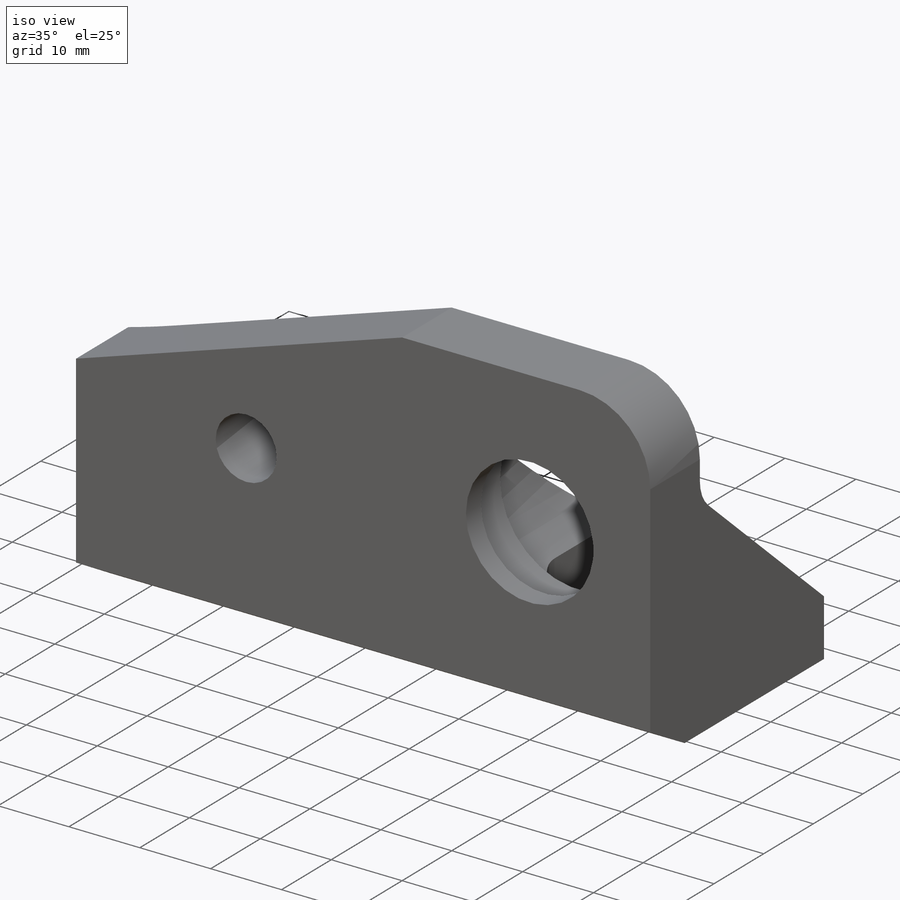
[diagram: iso view]
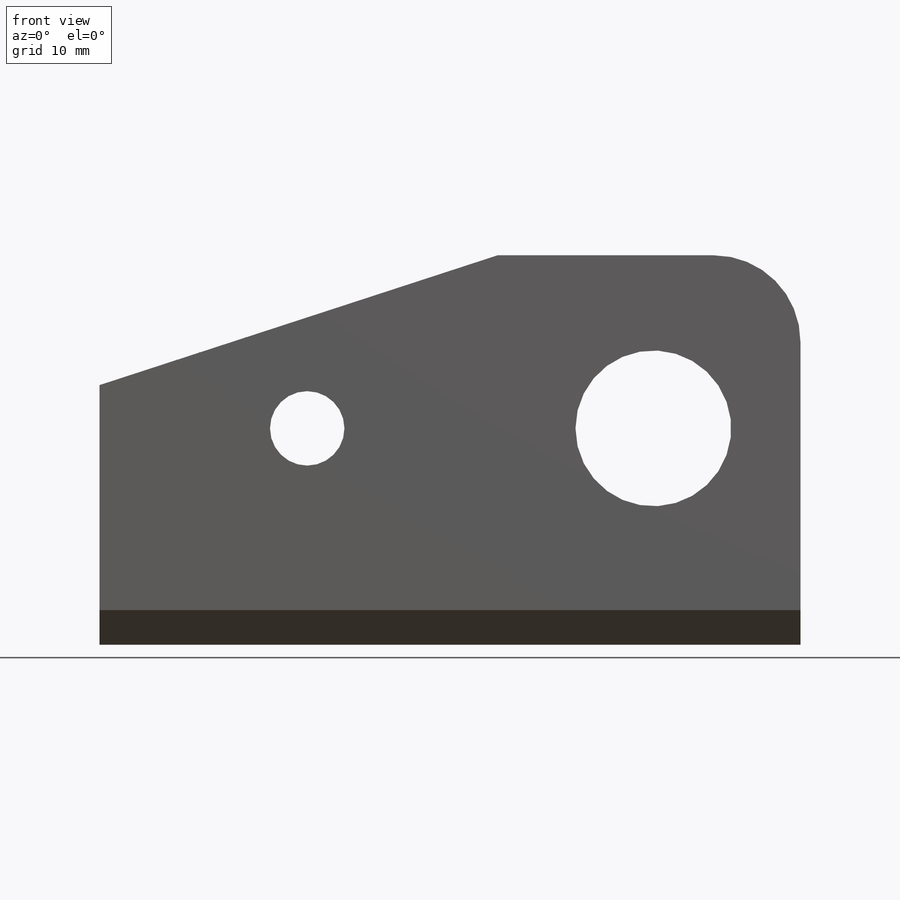
[diagram: front view]
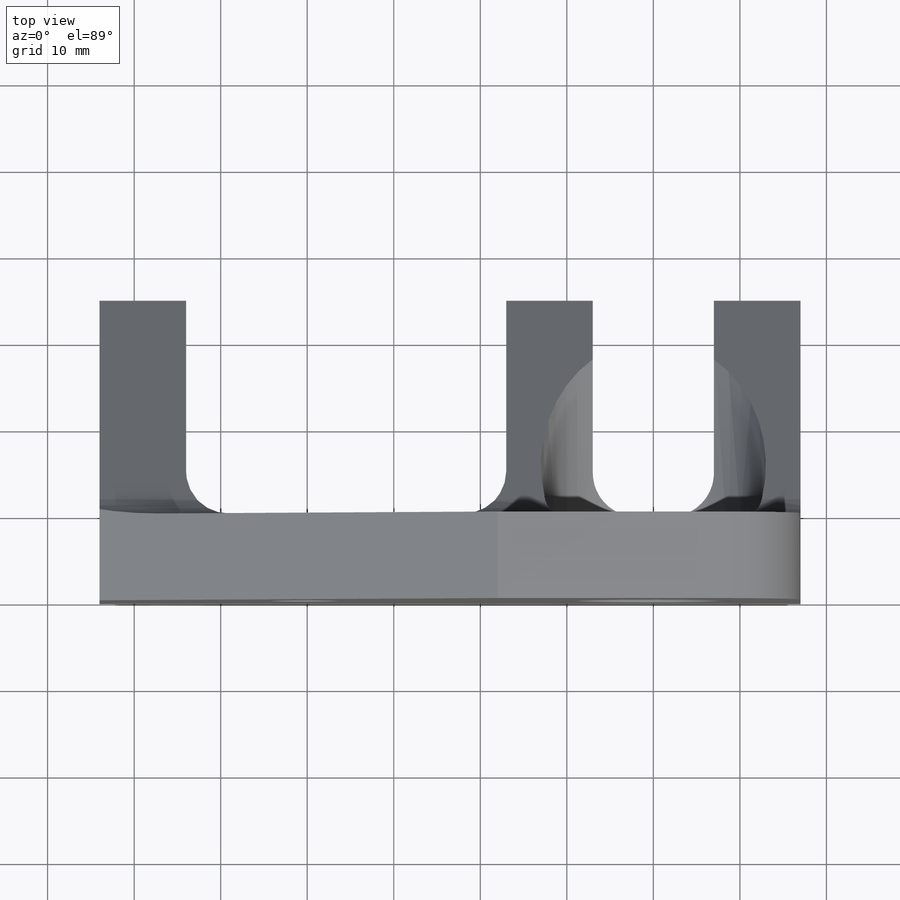
[diagram: top view]
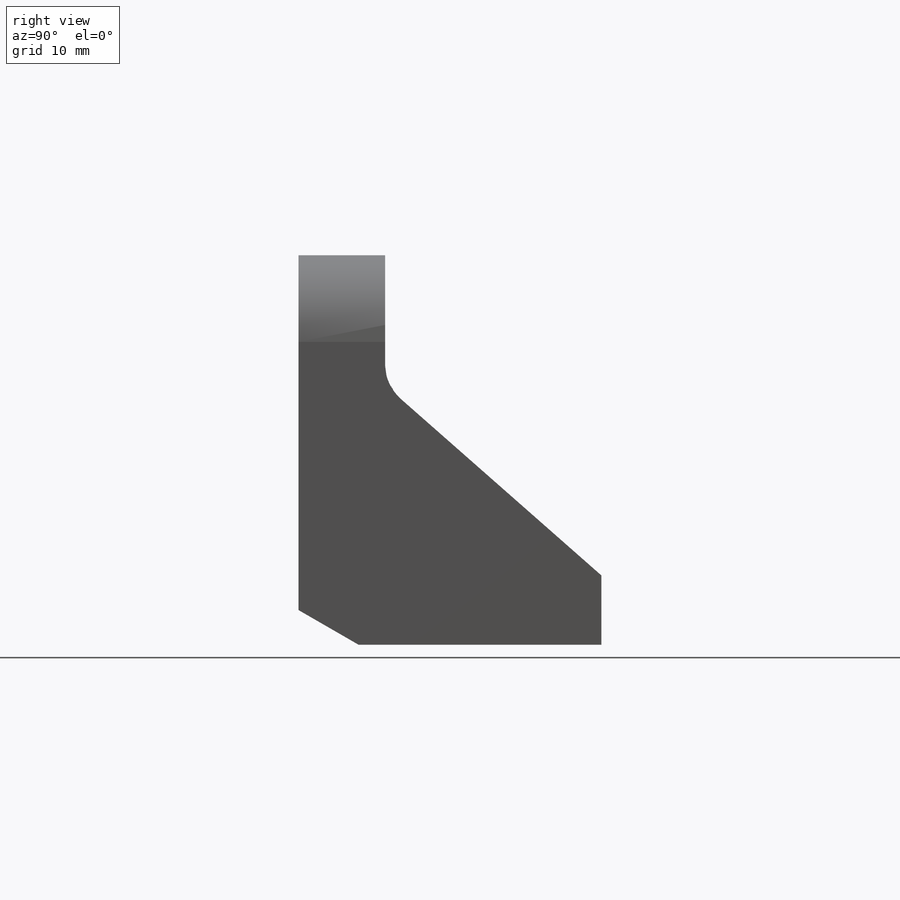
[diagram: right view]
SOLIDWORKS PART (.sldprt)
format: sldprt  version: not decoded by parser v0  size: 291,840 bytes
history: native  units: mm
features: sketch x8, extrude x4, cut_extrude x4, material x1, fillet x1, chamfer x1 (+11 scaffold rows collapsed)
feature tree (30):
  scaffold x11  (default folders/planes/origin — collapsed)
  material  "Material <not specified>"
  sketch  "Sketch1"  dims[c1.D2=18.0mm c1.D3=8.6mm c1.D7=18.0mm c1.D8=10.0mm c1.D10=10.0mm c1.D1=40.0mm c1.D4=25.0mm c1.D5=24.0mm c1.D6=17.0mm c1.D9=30.0mm c2.D10=78.0mm c2.D7=20.0mm c2.D8=18.0mm]
  extrude  "Boss-Extrude1"  Depth=10mm
  sketch  "Sketch3"  dims[D1=25.0mm D2=8.0mm]
  extrude  "Boss-Extrude2"  Depth=10mm
  sketch  "Sketch4"  dims[D1=0.0mm]
  extrude  "Boss-Extrude3"  Depth=10mm
  sketch  "Sketch5"  dims[D1=0.0mm]
  extrude  "Boss-Extrude4"  Depth=10mm
  sketch  "Sketch2"  dims[D1=22.4mm]
  cut_extrude  "Cut-Extrude1"  Depth=7mm
  sketch  "Sketch6"  dims[c1.D1=~9.205909mm c2.D1=30.0deg c2.D2=4.0mm]
  cut_extrude  "Cut-Extrude2"  [1 undecoded]
  fillet  "Fillet1"  Radius=5mm
  sketch  "Sketch7"  dims[D3=5.2mm D1=5.0mm D2=19.0mm]
  cut_extrude  "Cut-Extrude3"  Depth=8mm
  sketch  "Sketch8"  dims[D1=26.0mm]
  cut_extrude  "Cut-Extrude4"  [1 undecoded]
  chamfer  "Chamfer1"  Distance=0.6mm Angle=45deg
decode coverage: 16 of 18 modeling features carry decoded parameters
note: ~ marks probable driven/reference dimensions
note: 2 parameter values undecoded
note: suppression state not decoded; provenance and decode notes live in map.json
